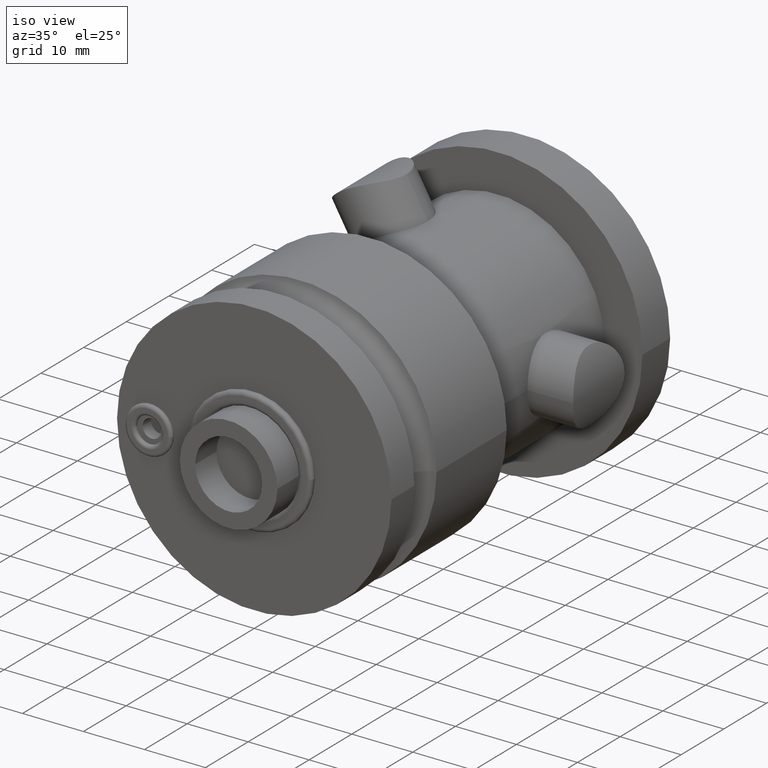
[diagram: clean part render]
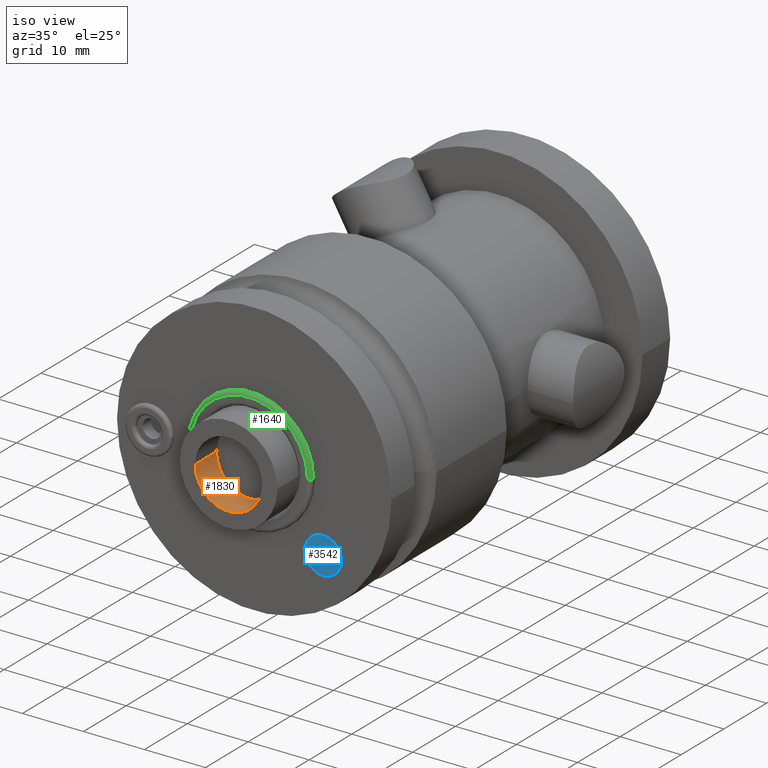
[diagram: same view with three faces highlighted in distinct colors, each labeled with its STEP entity id]
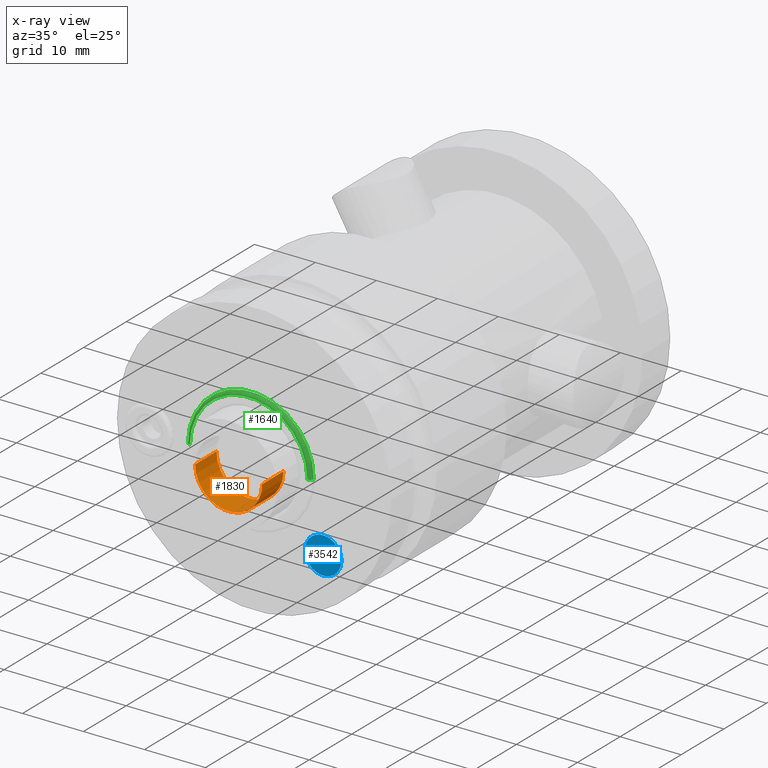
[diagram: x-ray of the same camera — body ghosted, the three highlighted faces saturated]
A machine part, iso view with three faces highlighted in distinct colors.
The next image is the same camera in x-ray (body ghosted, the three faces saturated) — at least one of them is partly hidden behind the body in this view.
Their STEP definitions:

[orange] entity #1830 — the highlighted cylindrical surface (partial cylindrical patch) has radius 5.5 mm, axis along (0, 1, 0).
#252=CARTESIAN_POINT('',(0.E0,-6.E0,0.E0));
#253=DIRECTION('',(0.E0,1.E0,0.E0));
#254=DIRECTION('',(1.E0,0.E0,0.E0));
#255=AXIS2_PLACEMENT_3D('',#252,#253,#254);
#260=DIRECTION('',(0.E0,-1.E0,0.E0));
#261=VECTOR('',#260,5.E0);
#262=CARTESIAN_POINT('',(5.5E0,-1.E0,0.E0));
#263=LINE('',#262,#261);
#275=DIRECTION('',(0.E0,-1.E0,0.E0));
#276=VECTOR('',#275,5.E0);
#277=CARTESIAN_POINT('',(-5.5E0,-1.E0,0.E0));
#278=LINE('',#277,#276);
#282=CARTESIAN_POINT('',(0.E0,-1.E0,0.E0));
#283=DIRECTION('',(0.E0,1.E0,0.E0));
#284=DIRECTION('',(1.E0,0.E0,0.E0));
#285=AXIS2_PLACEMENT_3D('',#282,#283,#284);
#1457=CARTESIAN_POINT('',(5.5E0,-1.E0,0.E0));
#1458=CARTESIAN_POINT('',(5.5E0,-6.E0,0.E0));
#1459=VERTEX_POINT('',#1457);
#1460=VERTEX_POINT('',#1458);
#1479=CARTESIAN_POINT('',(-5.5E0,-1.E0,0.E0));
#1480=CARTESIAN_POINT('',(-5.5E0,-6.E0,0.E0));
#1481=VERTEX_POINT('',#1479);
#1482=VERTEX_POINT('',#1480);
#1818=CARTESIAN_POINT('',(0.E0,0.E0,0.E0));
#1819=DIRECTION('',(0.E0,1.E0,0.E0));
#1820=DIRECTION('',(1.E0,0.E0,0.E0));
#1821=AXIS2_PLACEMENT_3D('',#1818,#1819,#1820);
#1822=CYLINDRICAL_SURFACE('',#1821,5.5E0);
#1823=ORIENTED_EDGE('',*,*,#1808,.T.);
#1824=ORIENTED_EDGE('',*,*,#1798,.T.);
#1825=ORIENTED_EDGE('',*,*,#1812,.F.);
#1827=ORIENTED_EDGE('',*,*,#1826,.F.);
#1828=EDGE_LOOP('',(#1823,#1824,#1825,#1827));
#1829=FACE_OUTER_BOUND('',#1828,.F.);
#256=CIRCLE('',#255,5.5E0);
#286=CIRCLE('',#285,5.5E0);
#1798=EDGE_CURVE('',#1460,#1482,#256,.T.);
#1808=EDGE_CURVE('',#1459,#1460,#263,.T.);
#1812=EDGE_CURVE('',#1481,#1482,#278,.T.);
#1826=EDGE_CURVE('',#1459,#1481,#286,.T.);
#1830=ADVANCED_FACE('',(#1829),#1822,.F.);

[blue] entity #3542 — the highlighted planar face has unit normal (0, 1, 0).
#3459=CARTESIAN_POINT('',(1.13E1,0.E0,-1.13E1));
#3460=DIRECTION('',(0.E0,1.E0,0.E0));
#3461=DIRECTION('',(-1.E0,0.E0,0.E0));
#3462=AXIS2_PLACEMENT_3D('',#3459,#3460,#3461);
#3467=CARTESIAN_POINT('',(1.13E1,0.E0,-1.13E1));
#3468=DIRECTION('',(0.E0,1.E0,0.E0));
#3469=DIRECTION('',(1.E0,0.E0,0.E0));
#3470=AXIS2_PLACEMENT_3D('',#3467,#3468,#3469);
#3479=CARTESIAN_POINT('',(8.3E0,0.E0,-1.13E1));
#3480=CARTESIAN_POINT('',(1.43E1,0.E0,-1.13E1));
#3481=VERTEX_POINT('',#3479);
#3482=VERTEX_POINT('',#3480);
#3533=CARTESIAN_POINT('',(1.13E1,0.E0,-1.13E1));
#3534=DIRECTION('',(0.E0,1.E0,0.E0));
#3535=DIRECTION('',(-1.E0,0.E0,0.E0));
#3536=AXIS2_PLACEMENT_3D('',#3533,#3534,#3535);
#3537=PLANE('',#3536);
#3538=ORIENTED_EDGE('',*,*,#3513,.T.);
#3539=ORIENTED_EDGE('',*,*,#3527,.T.);
#3540=EDGE_LOOP('',(#3538,#3539));
#3541=FACE_OUTER_BOUND('',#3540,.F.);
#3463=CIRCLE('',#3462,3.E0);
#3471=CIRCLE('',#3470,3.E0);
#3513=EDGE_CURVE('',#3481,#3482,#3463,.T.);
#3527=EDGE_CURVE('',#3482,#3481,#3471,.T.);
#3542=ADVANCED_FACE('',(#3541),#3537,.F.);

[green] entity #1640 — the highlighted toroidal blend (fillet) surface has major radius 9.65 mm and minor (blend) radius 0.6 mm.
#117=CARTESIAN_POINT('',(0.E0,-7.000000000001E-1,0.E0));
#118=DIRECTION('',(0.E0,1.E0,0.E0));
#119=DIRECTION('',(-1.E0,0.E0,0.E0));
#120=AXIS2_PLACEMENT_3D('',#117,#118,#119);
#126=CARTESIAN_POINT('',(-9.65E0,-7.000000000001E-1,0.E0));
#127=DIRECTION('',(0.E0,0.E0,1.E0));
#128=DIRECTION('',(-1.E0,0.E0,0.E0));
#129=AXIS2_PLACEMENT_3D('',#126,#127,#128);
#134=CARTESIAN_POINT('',(9.65E0,-7.000000000001E-1,0.E0));
#135=DIRECTION('',(0.E0,0.E0,-1.E0));
#136=DIRECTION('',(1.E0,0.E0,0.E0));
#137=AXIS2_PLACEMENT_3D('',#134,#135,#136);
#158=CARTESIAN_POINT('',(0.E0,-1.3E0,0.E0));
#159=DIRECTION('',(0.E0,1.E0,0.E0));
#160=DIRECTION('',(-1.E0,0.E0,0.E0));
#161=AXIS2_PLACEMENT_3D('',#158,#159,#160);
#1590=CARTESIAN_POINT('',(-1.025E1,-7.000000000001E-1,0.E0));
#1592=VERTEX_POINT('',#1590);
#1593=CARTESIAN_POINT('',(-9.65E0,-1.3E0,0.E0));
#1594=VERTEX_POINT('',#1593);
#1596=CARTESIAN_POINT('',(1.025E1,-7.000000000001E-1,0.E0));
#1598=VERTEX_POINT('',#1596);
#1599=CARTESIAN_POINT('',(9.65E0,-1.3E0,0.E0));
#1600=VERTEX_POINT('',#1599);
#1625=CARTESIAN_POINT('',(0.E0,-7.000000000001E-1,0.E0));
#1626=DIRECTION('',(0.E0,1.E0,0.E0));
#1627=DIRECTION('',(1.E0,0.E0,0.E0));
#1628=AXIS2_PLACEMENT_3D('',#1625,#1626,#1627);
#1629=TOROIDAL_SURFACE('',#1628,9.65E0,6.E-1);
#1631=ORIENTED_EDGE('',*,*,#1630,.F.);
#1633=ORIENTED_EDGE('',*,*,#1632,.T.);
#1635=ORIENTED_EDGE('',*,*,#1634,.T.);
#1637=ORIENTED_EDGE('',*,*,#1636,.F.);
#1638=EDGE_LOOP('',(#1631,#1633,#1635,#1637));
#1639=FACE_OUTER_BOUND('',#1638,.F.);
#121=CIRCLE('',#120,1.025E1);
#130=CIRCLE('',#129,6.E-1);
#138=CIRCLE('',#137,6.E-1);
#162=CIRCLE('',#161,9.65E0);
#1630=EDGE_CURVE('',#1592,#1594,#130,.T.);
#1632=EDGE_CURVE('',#1592,#1598,#121,.T.);
#1634=EDGE_CURVE('',#1598,#1600,#138,.T.);
#1636=EDGE_CURVE('',#1594,#1600,#162,.T.);
#1640=ADVANCED_FACE('',(#1639),#1629,.T.);